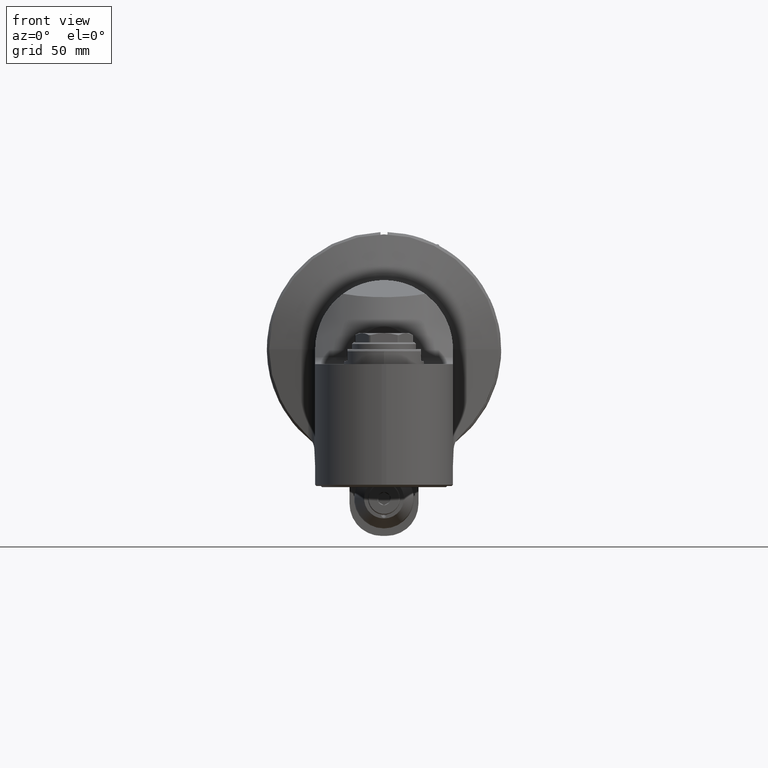
[diagram: clean part render]
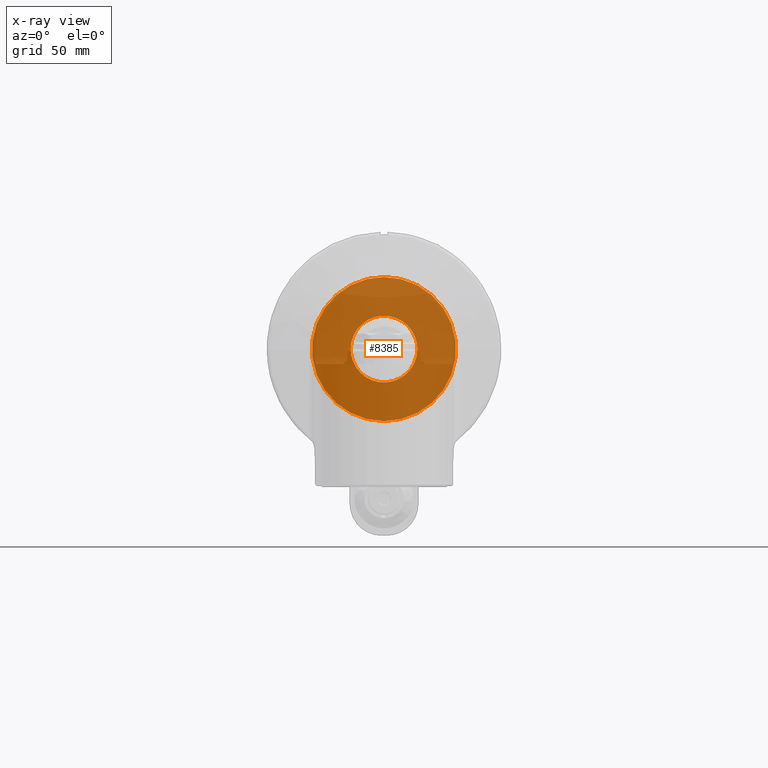
[diagram: x-ray — body ghosted, one internal face saturated and labeled with its STEP entity id]
A machine part, front view, then the same camera in x-ray: the body is ghosted and one INTERNAL B-rep face — a face not visible from any outside direction — is saturated and labeled: STEP entity #8385.
In plain terms, the highlighted planar face has unit normal (0, 1, 0).
Its self-contained STEP definition (entity closure, byte-faithful):
#207=B_SPLINE_CURVE_WITH_KNOTS('',3,(#13560,#13561,#13562,#13563,#13564,
#13565,#13566,#13567,#13568,#13569,#13570,#13571,#13572,#13573,#13574,#13575,
#13576,#13577,#13578,#13579),.UNSPECIFIED.,.F.,.F.,(4,1,1,1,1,1,1,1,1,1,
1,1,1,1,1,1,1,4),(0.,0.05882352941176,0.1176470588235,0.1764705882353,0.2352941176471,
0.2941176470588,0.3529411764706,0.4117647058824,0.4705882352941,0.5294117647059,
0.5882352941176,0.6470588235294,0.7058823529412,0.7647058823529,0.8235294117647,
0.8823529411765,0.9411764705882,1.),.UNSPECIFIED.);
#208=B_SPLINE_CURVE_WITH_KNOTS('',3,(#13580,#13581,#13582,#13583,#13584,
#13585,#13586,#13587,#13588,#13589,#13590,#13591,#13592,#13593,#13594,#13595,
#13596,#13597,#13598,#13599),.UNSPECIFIED.,.F.,.F.,(4,1,1,1,1,1,1,1,1,1,
1,1,1,1,1,1,1,4),(0.,0.05882352941176,0.1176470588235,0.1764705882353,0.2352941176471,
0.2941176470588,0.3529411764706,0.4117647058824,0.4705882352941,0.5294117647059,
0.5882352941176,0.6470588235294,0.7058823529412,0.7647058823529,0.8235294117647,
0.8823529411765,0.9411764705882,1.),.UNSPECIFIED.);
#356=FACE_BOUND('',#1412,.T.);
#479=PLANE('',#9090);
#900=FACE_OUTER_BOUND('',#1411,.T.);
#1411=EDGE_LOOP('',(#6389));
#1412=EDGE_LOOP('',(#6390,#6391));
#3065=CIRCLE('',#9091,31.35);
#3647=VERTEX_POINT('',#13556);
#3648=VERTEX_POINT('',#13558);
#3649=VERTEX_POINT('',#13559);
#4658=EDGE_CURVE('',#3647,#3647,#3065,.T.);
#4659=EDGE_CURVE('',#3648,#3649,#207,.T.);
#4660=EDGE_CURVE('',#3649,#3648,#208,.T.);
#6389=ORIENTED_EDGE('',*,*,#4658,.T.);
#6390=ORIENTED_EDGE('',*,*,#4659,.T.);
#6391=ORIENTED_EDGE('',*,*,#4660,.T.);
#8385=ADVANCED_FACE('',(#900,#356),#479,.F.);
#9090=AXIS2_PLACEMENT_3D('',#13555,#10574,#10575);
#9091=AXIS2_PLACEMENT_3D('',#13557,#10576,#10577);
#10574=DIRECTION('center_axis',(0.,1.,0.));
#10575=DIRECTION('ref_axis',(0.,0.,1.));
#10576=DIRECTION('center_axis',(0.,-1.,0.));
#10577=DIRECTION('ref_axis',(0.,0.,-1.));
#13555=CARTESIAN_POINT('Origin',(1.347113091385E-14,32.,0.));
#13556=CARTESIAN_POINT('',(-4.14064332999959E-18,32.,-31.35));
#13557=CARTESIAN_POINT('Origin',(1.61232300003015E-20,32.,0.));
#13558=CARTESIAN_POINT('',(14.5,32.,0.));
#13559=CARTESIAN_POINT('',(-14.5,32.,0.));
#13560=CARTESIAN_POINT('Ctrl Pts',(14.5,32.,0.));
#13561=CARTESIAN_POINT('Ctrl Pts',(14.49888450858,32.,-0.9016584831045));
#13562=CARTESIAN_POINT('Ctrl Pts',(14.33554001612,32.,-2.671468599625));
#13563=CARTESIAN_POINT('Ctrl Pts',(13.59869267255,32.,-5.268829729588));
#13564=CARTESIAN_POINT('Ctrl Pts',(12.39548495214,32.,-7.679337301994));
#13565=CARTESIAN_POINT('Ctrl Pts',(10.79223327368,32.,-9.806914598114));
#13566=CARTESIAN_POINT('Ctrl Pts',(8.79091572937801,32.,-11.63683328154));
#13567=CARTESIAN_POINT('Ctrl Pts',(6.49471575809501,32.,-13.0569736024));
#13568=CARTESIAN_POINT('Ctrl Pts',(3.97808609475701,32.,-14.02996751605));
#13569=CARTESIAN_POINT('Ctrl Pts',(1.33202254429501,32.,-14.52162747338));
#13570=CARTESIAN_POINT('Ctrl Pts',(-1.35501022133299,32.,-14.5192889571));
#13571=CARTESIAN_POINT('Ctrl Pts',(-3.99329212023499,32.,-14.02494121093));
#13572=CARTESIAN_POINT('Ctrl Pts',(-6.49596555590199,32.,-13.05524697636));
#13573=CARTESIAN_POINT('Ctrl Pts',(-8.77911230056899,32.,-11.64458652108));
#13574=CARTESIAN_POINT('Ctrl Pts',(-10.77438007515,32.,-9.825801018785));
#13575=CARTESIAN_POINT('Ctrl Pts',(-12.3799103196,32.,-7.704440983411));
#13576=CARTESIAN_POINT('Ctrl Pts',(-13.58956697316,32.,-5.293415155813));
#13577=CARTESIAN_POINT('Ctrl Pts',(-14.33354425829,32.,-2.687238459729));
#13578=CARTESIAN_POINT('Ctrl Pts',(-14.49853883461,32.,-0.9076552997688));
#13579=CARTESIAN_POINT('Ctrl Pts',(-14.5,32.,0.));
#13580=CARTESIAN_POINT('Ctrl Pts',(-14.5,32.,0.));
#13581=CARTESIAN_POINT('Ctrl Pts',(-14.49888450858,32.,0.9016584831045));
#13582=CARTESIAN_POINT('Ctrl Pts',(-14.33554001612,32.,2.671468599625));
#13583=CARTESIAN_POINT('Ctrl Pts',(-13.59869267255,32.,5.268829729588));
#13584=CARTESIAN_POINT('Ctrl Pts',(-12.39548495214,32.,7.679337301994));
#13585=CARTESIAN_POINT('Ctrl Pts',(-10.79223327368,32.,9.806914598114));
#13586=CARTESIAN_POINT('Ctrl Pts',(-8.79091572937799,32.,11.63683328154));
#13587=CARTESIAN_POINT('Ctrl Pts',(-6.49471575809499,32.,13.0569736024));
#13588=CARTESIAN_POINT('Ctrl Pts',(-3.97808609475699,32.,14.02996751605));
#13589=CARTESIAN_POINT('Ctrl Pts',(-1.33202254429499,32.,14.52162747338));
#13590=CARTESIAN_POINT('Ctrl Pts',(1.35501022133301,32.,14.5192889571));
#13591=CARTESIAN_POINT('Ctrl Pts',(3.99329212023501,32.,14.02494121093));
#13592=CARTESIAN_POINT('Ctrl Pts',(6.49596555590201,32.,13.05524697636));
#13593=CARTESIAN_POINT('Ctrl Pts',(8.77911230056901,32.,11.64458652108));
#13594=CARTESIAN_POINT('Ctrl Pts',(10.77438007515,32.,9.825801018785));
#13595=CARTESIAN_POINT('Ctrl Pts',(12.3799103196,32.,7.704440983411));
#13596=CARTESIAN_POINT('Ctrl Pts',(13.58956697316,32.,5.293415155813));
#13597=CARTESIAN_POINT('Ctrl Pts',(14.33354425829,32.,2.687238459729));
#13598=CARTESIAN_POINT('Ctrl Pts',(14.49853883461,32.,0.9076552997688));
#13599=CARTESIAN_POINT('Ctrl Pts',(14.5,32.,0.));